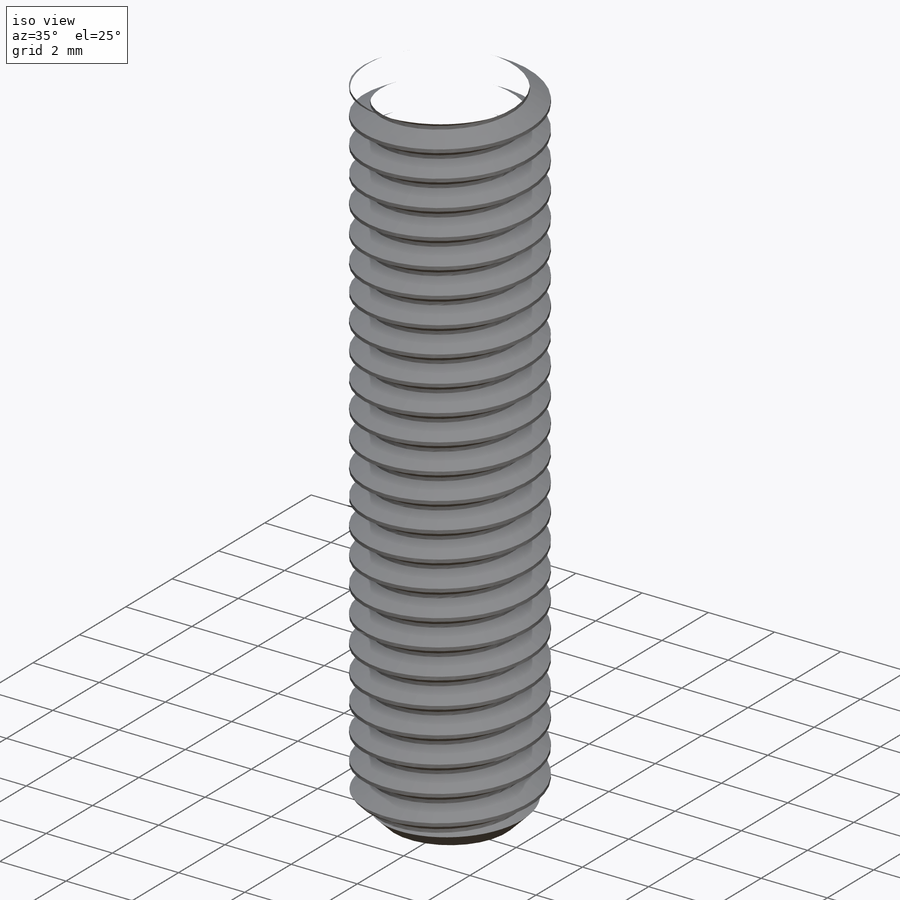
[diagram: iso view]
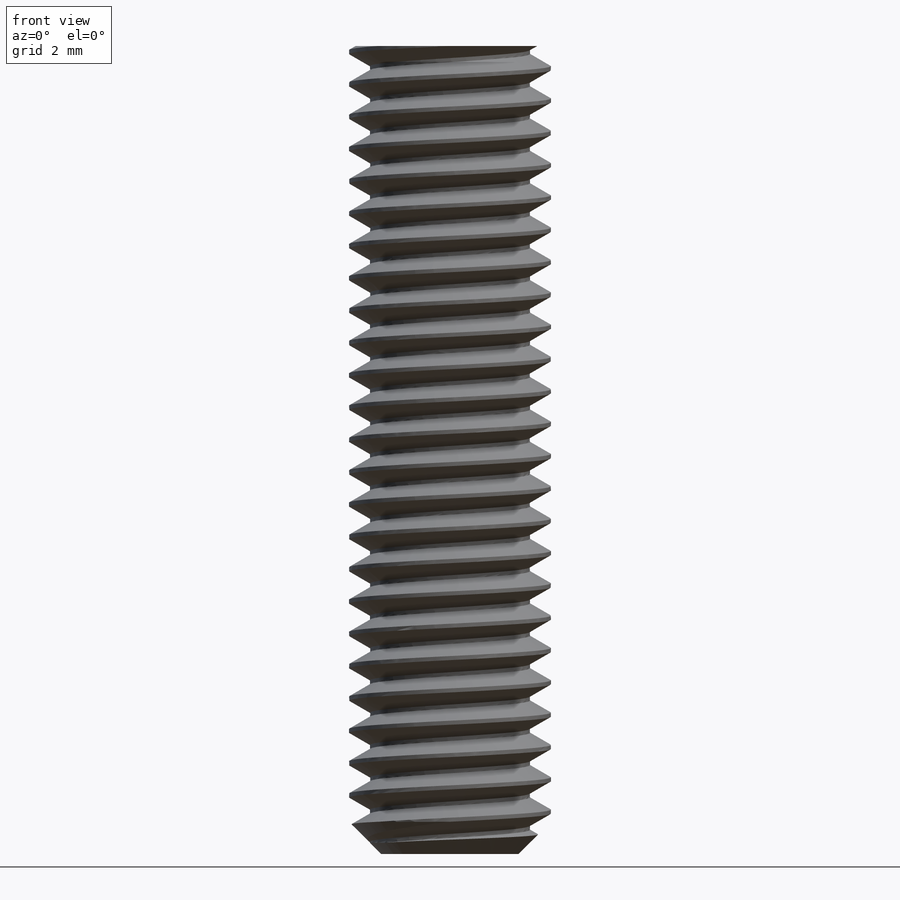
[diagram: front view]
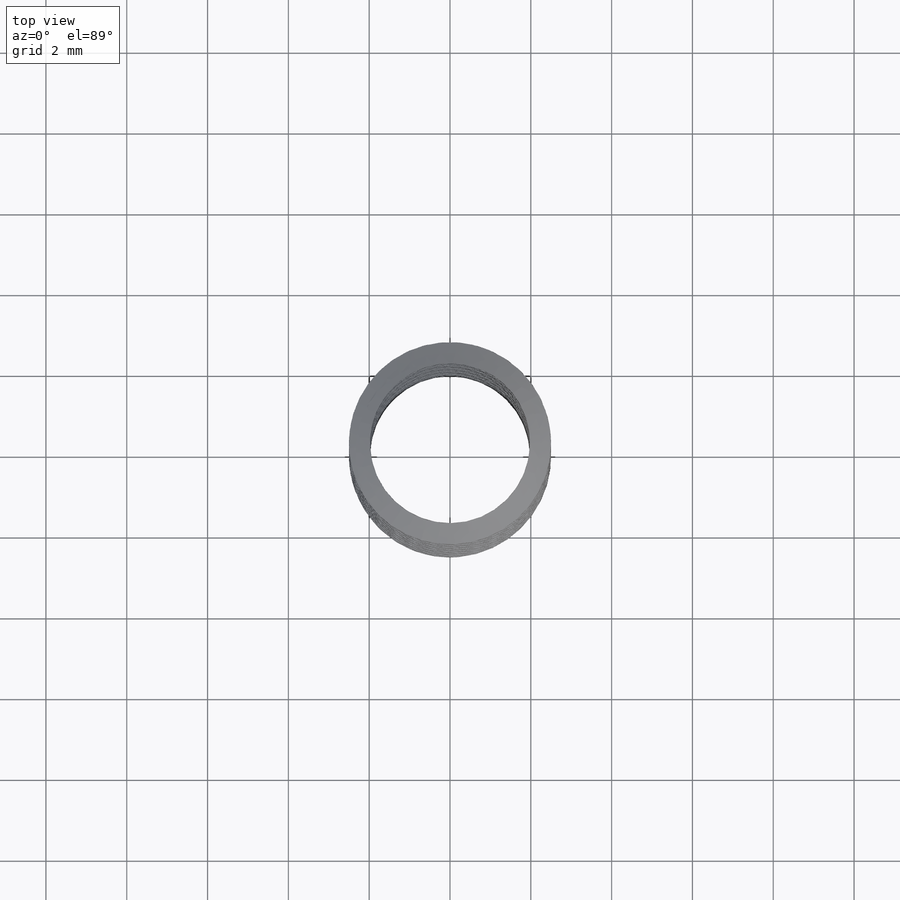
[diagram: top view]
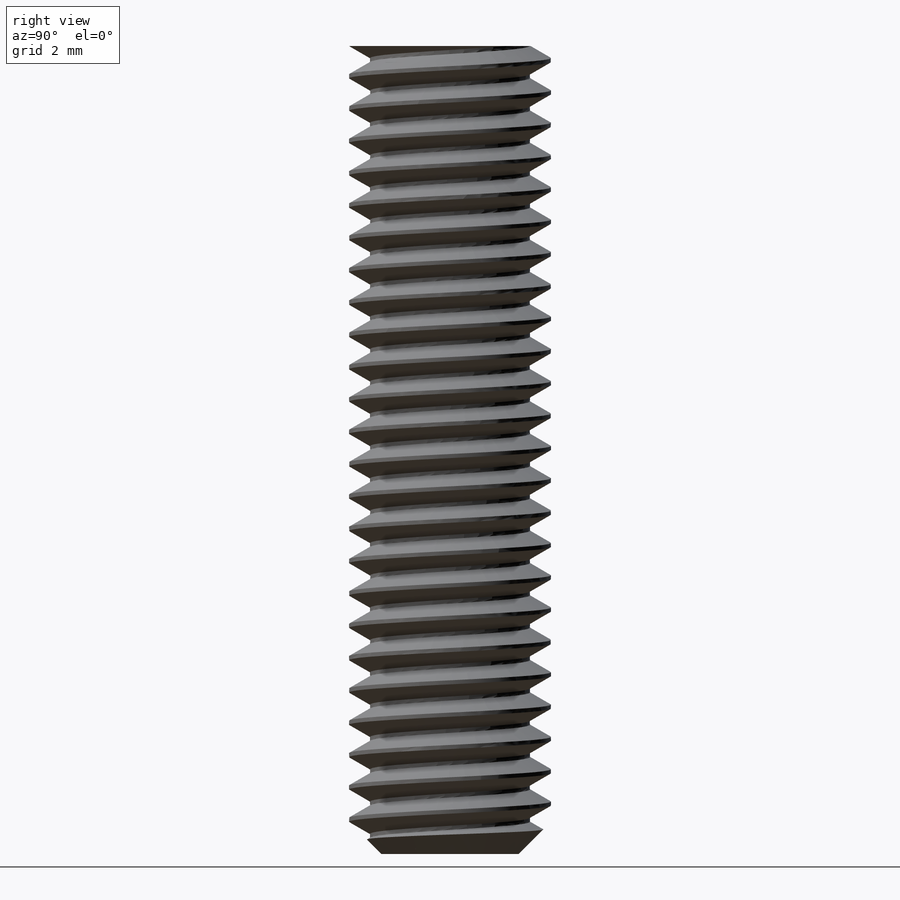
[diagram: right view]
SOLIDWORKS PART (.sldprt)
format: sldprt  version: not decoded by parser v0  size: 1,122,304 bytes
history: native  units: mm
features: sketch x10, cut_extrude x4, revolve x3, chamfer x2, material x1, helix x1, sweep x1 (+12 scaffold rows collapsed)
feature tree (34):
  scaffold x12  (default folders/planes/origin — collapsed)
  material  "Material <not specified>"
  sketch  "Sketch1"  dims[A=5.0mm Ball Dia=11.1mm B=16.0mm D=33.0mm E=20.0mm Thread Dia=5.0mm D2=16.0mm D3=4.0mm]
  revolve  "Revolve1"  Angle=360deg
  sketch  "Sketch12"  dims[D1=0.0mm]
  helix  "Helix/Spiral1"  Pitch=20.8mm pitch=0.8mm
  chamfer  "Chamfer2"  Distance=0.8mm Angle=45deg
  sketch  "Sketch13"  dims[c1.D1=0.1mm c1.D2=0.4mm c1.D3=~1.760123mm c2.D3=60.0deg]
  sweep  "Cut-Sweep1"
  sketch  "Sketch4"  dims[D1=2.54mm]
  revolve  "Revolve2"  Angle=360deg
  sketch  "Sketch5"  dims[c1.F=5.75mm c1.D2=~11.456971mm c2.D2=35.0deg c3.D2=~141.62799mm c4.D2=35.0deg c5.D2=1.15mm c5.D1=5.0mm]
  cut_extrude  "Cut-Extrude1"  [1 undecoded]
  sketch  "Sketch6"
  cut_extrude  "Cut-Extrude2"  [1 undecoded]
  sketch  "Sketch7"
  revolve  "Revolve3"  Angle=360deg
  sketch  "Sketch8"  dims[C=8.0mm]
  cut_extrude  "Cut-Extrude3"  [1 undecoded]
  sketch  "Sketch10"
  cut_extrude  "Cut-Extrude4"  [1 undecoded]
  chamfer  "Chamfer1"  Distance=0.25mm Angle=45deg
  sketch  "Sketch11"  dims[D1=2.54mm D2=~3.69202mm Swivel=22.0deg]
decode coverage: 13 of 21 modeling features carry decoded parameters
note: ~ marks probable driven/reference dimensions
note: 4 parameter values undecoded
summary: no parameter record found for 4 features
note: suppression state not decoded; provenance and decode notes live in map.json
